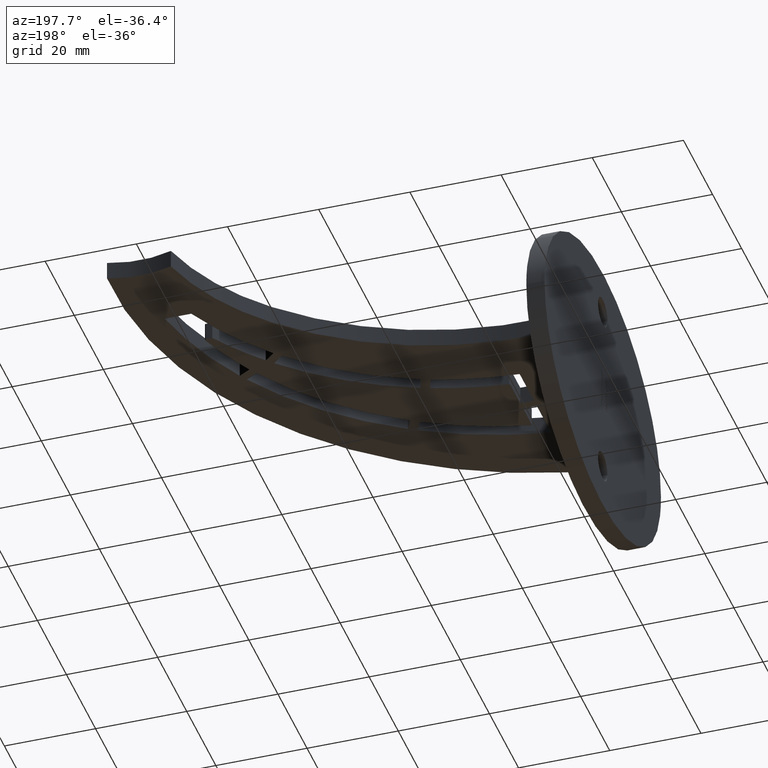
[diagram: clean part render]
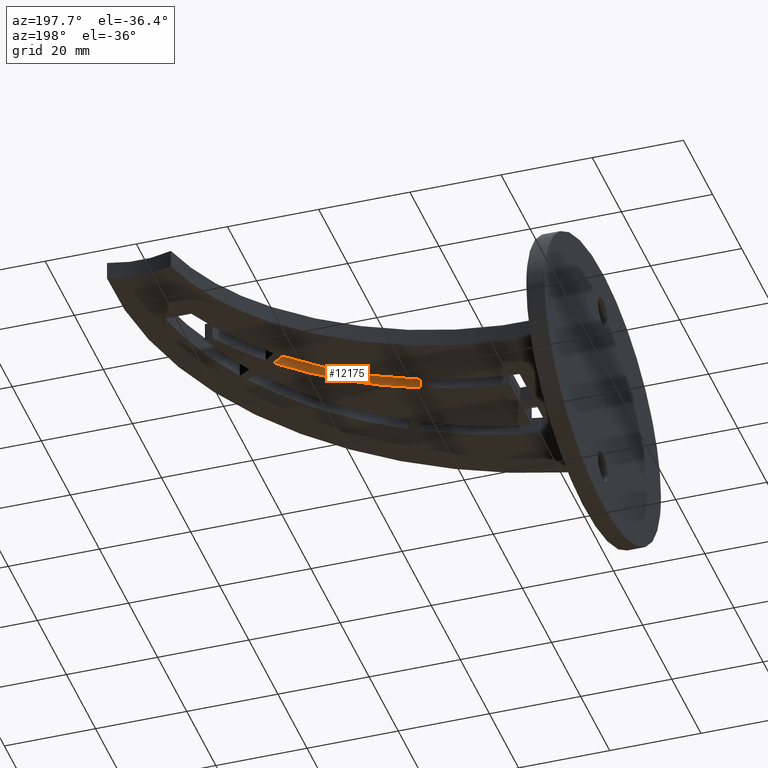
[diagram: same view with one face highlighted and labeled with its STEP entity id]
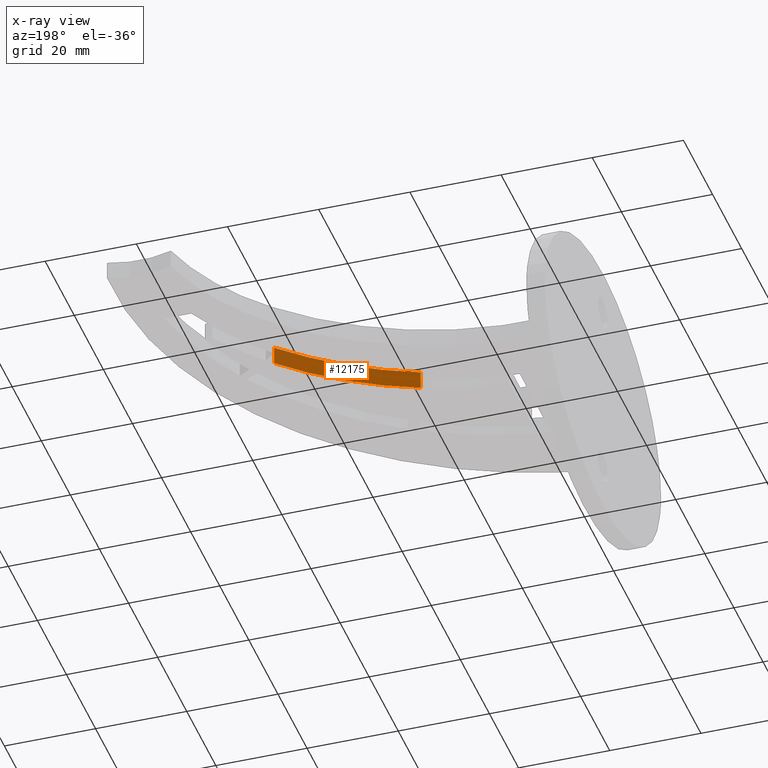
[diagram: x-ray of the same camera — body ghosted, the highlighted face saturated]
A machine part, auxiliary view. The second image highlights one B-rep face of the part: STEP entity #12175.
The next image is the same camera in x-ray: the body ghosted, the highlighted face saturated — about 0% of this face is hidden behind the body in this view.
In plain terms, the highlighted cylindrical surface (partial cylindrical patch) has radius 73 mm, axis along (-0, -0, -1).
Its self-contained STEP definition (entity closure, byte-faithful):
#194 = VERTEX_POINT ( 'NONE', #11664 ) ;
#358 = VECTOR ( 'NONE', #8146, 1000.000000000000000 ) ;
#697 = CARTESIAN_POINT ( 'NONE',  ( 31.33010419547926872, 14.57124240828424711, 2.000000000000000000 ) ) ;
#740 = EDGE_LOOP ( 'NONE', ( #4736, #11028, #2587, #8750 ) ) ;
#775 = FACE_OUTER_BOUND ( 'NONE', #740, .T. ) ;
#1221 = VERTEX_POINT ( 'NONE', #6142 ) ;
#1848 = EDGE_CURVE ( 'NONE', #4553, #194, #3512, .T. ) ;
#2587 = ORIENTED_EDGE ( 'NONE', *, *, #13352, .T. ) ;
#2945 = DIRECTION ( 'NONE',  ( -0.000000000000000000, 0.000000000000000000, 1.000000000000000000 ) ) ;
#3512 = CIRCLE ( 'NONE', #5293, 73.00000000000001421 ) ;
#4278 = DIRECTION ( 'NONE',  ( -0.000000000000000000, -0.000000000000000000, -1.000000000000000000 ) ) ;
#4311 = VERTEX_POINT ( 'NONE', #11109 ) ;
#4319 = DIRECTION ( 'NONE',  ( -1.000000000000000000, 0.000000000000000000, 0.000000000000000000 ) ) ;
#4553 = VERTEX_POINT ( 'NONE', #7382 ) ;
#4736 = ORIENTED_EDGE ( 'NONE', *, *, #1848, .F. ) ;
#5126 = LINE ( 'NONE', #5227, #10156 ) ;
#5227 = CARTESIAN_POINT ( 'NONE',  ( 57.81112312110035845, 32.14023218370323320, 2.000000000000000000 ) ) ;
#5293 = AXIS2_PLACEMENT_3D ( 'NONE', #7430, #12710, #12663 ) ;
#5890 = LINE ( 'NONE', #697, #358 ) ;
#6142 = CARTESIAN_POINT ( 'NONE',  ( 57.81112312110035845, 32.14023218370323320, 2.000000000000000000 ) ) ;
#6289 = DIRECTION ( 'NONE',  ( -0.000000000000000000, -0.000000000000000000, -1.000000000000000000 ) ) ;
#6307 = EDGE_CURVE ( 'NONE', #4311, #4553, #5890, .T. ) ;
#7382 = CARTESIAN_POINT ( 'NONE',  ( 31.33010419547926872, 14.57124240828424711, -2.000000000000000000 ) ) ;
#7430 = CARTESIAN_POINT ( 'NONE',  ( 5.180452133363093736, 82.72691493104838401, -2.000000000000000000 ) ) ;
#8146 = DIRECTION ( 'NONE',  ( -0.000000000000000000, -0.000000000000000000, -1.000000000000000000 ) ) ;
#8153 = CARTESIAN_POINT ( 'NONE',  ( 5.180452133363093736, 82.72691493104838401, 2.000000000000000000 ) ) ;
#8750 = ORIENTED_EDGE ( 'NONE', *, *, #12690, .T. ) ;
#10156 = VECTOR ( 'NONE', #6289, 1000.000000000000000 ) ;
#10189 = DIRECTION ( 'NONE',  ( 1.000000000000000000, 0.000000000000000000, 0.000000000000000000 ) ) ;
#10501 = CARTESIAN_POINT ( 'NONE',  ( 5.180452133363093736, 82.72691493104838401, 2.000000000000000000 ) ) ;
#11028 = ORIENTED_EDGE ( 'NONE', *, *, #6307, .F. ) ;
#11109 = CARTESIAN_POINT ( 'NONE',  ( 31.33010419547926872, 14.57124240828424711, 2.000000000000000000 ) ) ;
#11644 = CYLINDRICAL_SURFACE ( 'NONE', #13190, 73.00000000000001421 ) ;
#11664 = CARTESIAN_POINT ( 'NONE',  ( 57.81112312110035845, 32.14023218370323320, -2.000000000000000000 ) ) ;
#11804 = CIRCLE ( 'NONE', #12937, 73.00000000000001421 ) ;
#12175 = ADVANCED_FACE ( 'NONE', ( #775 ), #11644, .F. ) ;
#12663 = DIRECTION ( 'NONE',  ( 1.000000000000000000, 0.000000000000000000, 0.000000000000000000 ) ) ;
#12690 = EDGE_CURVE ( 'NONE', #1221, #194, #5126, .T. ) ;
#12710 = DIRECTION ( 'NONE',  ( -0.000000000000000000, 0.000000000000000000, 1.000000000000000000 ) ) ;
#12937 = AXIS2_PLACEMENT_3D ( 'NONE', #8153, #2945, #10189 ) ;
#13190 = AXIS2_PLACEMENT_3D ( 'NONE', #10501, #4278, #4319 ) ;
#13352 = EDGE_CURVE ( 'NONE', #4311, #1221, #11804, .T. ) ;